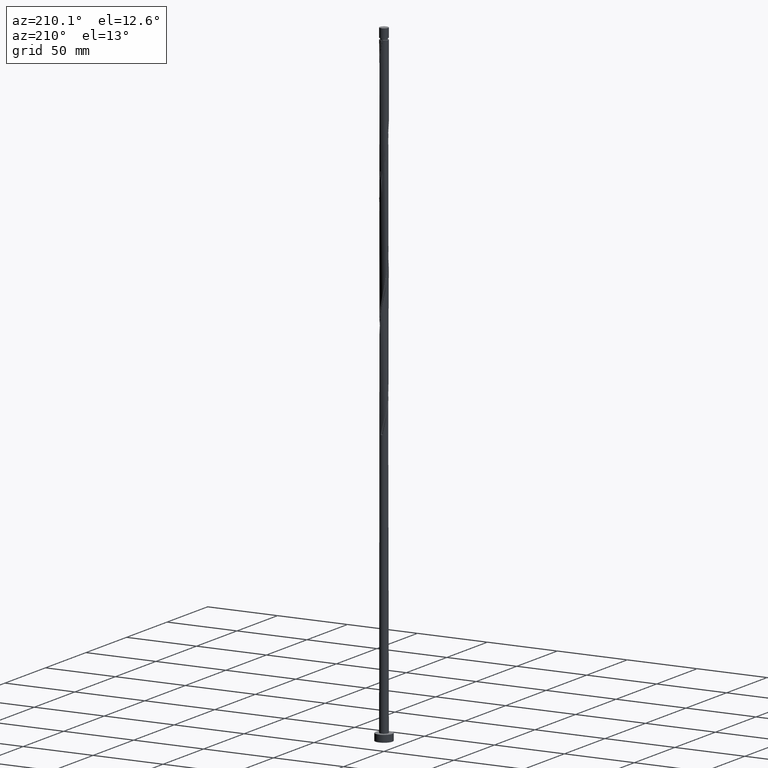
[diagram: clean part render]
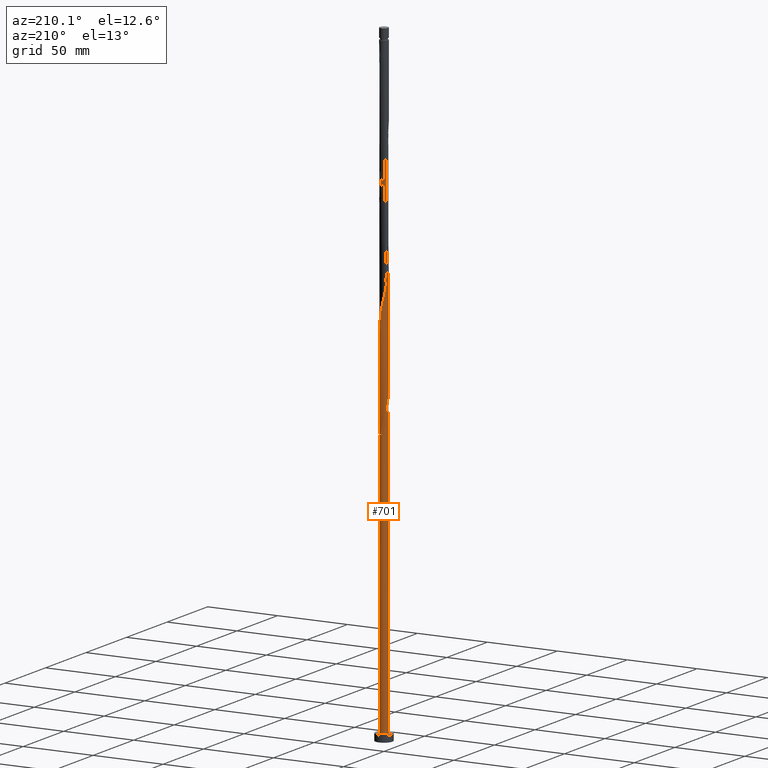
[diagram: same view with one face highlighted and labeled with its STEP entity id]
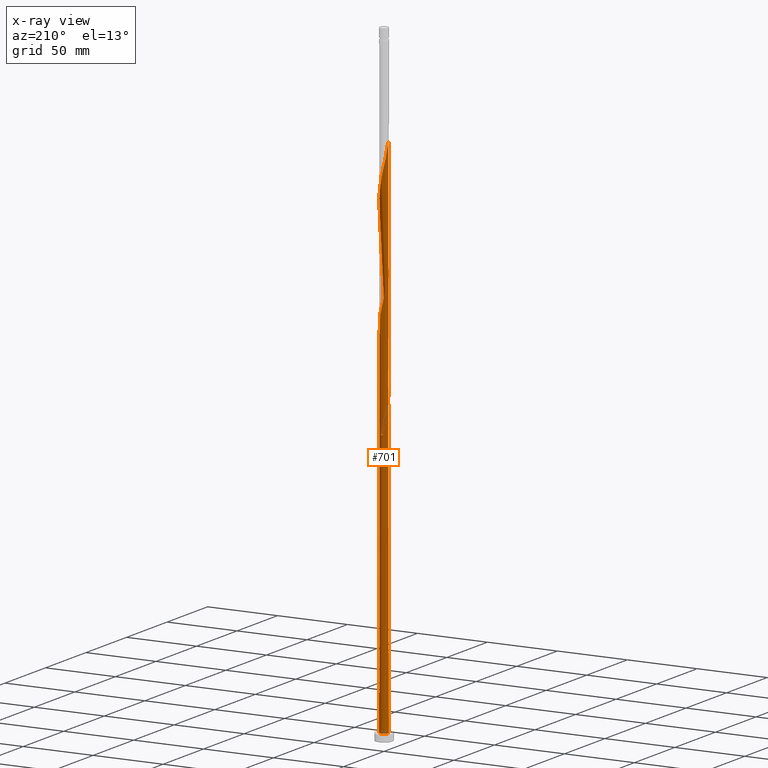
[diagram: x-ray of the same camera — body ghosted, the highlighted face saturated]
A machine part, auxiliary view. The second image highlights one B-rep face of the part: STEP entity #701.
The next image is the same camera in x-ray: the body ghosted, the highlighted face saturated — about 0% of this face is hidden behind the body in this view.
In plain terms, the highlighted cylindrical surface (bore or boss wall) has radius 3 mm, axis along (-0, -0, -1).
Its self-contained STEP definition (entity closure, byte-faithful):
#6 = CARTESIAN_POINT ( 'NONE',  ( 0.01195587277277157696, 2.999976176089777624, 197.0428741216064168 ) ) ;
#19 = CARTESIAN_POINT ( 'NONE',  ( -3.000000000000004885, 1.538591617271993486E-15, 212.6151771436095714 ) ) ;
#28 = CARTESIAN_POINT ( 'NONE',  ( 2.664207629581487602, -1.410426430302975209, 247.8241241216065021 ) ) ;
#37 = CARTESIAN_POINT ( 'NONE',  ( -1.159086966227606874, 2.767041272681220576, 280.3762074549396743 ) ) ;
#38 = VECTOR ( 'NONE', #1929, 1000.000000000000000 ) ;
#45 = CARTESIAN_POINT ( 'NONE',  ( 2.112849418798543599, 2.129757576223802129, 264.7512074549397312 ) ) ;
#53 = CARTESIAN_POINT ( 'NONE',  ( -2.129757576223803017, 2.112849418798543155, 285.5845407882730456 ) ) ;
#63 = CARTESIAN_POINT ( 'NONE',  ( 1.431616744321173362, -2.652881170764467278, 323.3449574549398449 ) ) ;
#76 = CARTESIAN_POINT ( 'NONE',  ( -1.676638408102569811, 2.487746701027921503, 366.3137074549398449 ) ) ;
#85 = CARTESIAN_POINT ( 'NONE',  ( -2.998798625402032236, -0.3074277363939125207, 297.3032907882730456 ) ) ;
#94 = CARTESIAN_POINT ( 'NONE',  ( 2.664207629581487602, -1.410426430302975209, 331.1574574549397312 ) ) ;
#95 = CARTESIAN_POINT ( 'NONE',  ( -1.656756518304338233, 2.501031355072561801, 204.8553741216063599 ) ) ;
#97 = CARTESIAN_POINT ( 'NONE',  ( -0.5969924622639756207, 2.940000000000003944, 194.4387074549397028 ) ) ;
#102 = CARTESIAN_POINT ( 'NONE',  ( -2.129757576223803017, 2.112849418798543155, 368.9178741216065305 ) ) ;
#125 = CARTESIAN_POINT ( 'NONE',  ( -3.000000000000003997, 0.2894394447869549913, 211.3391970381935039 ) ) ;
#133 = CARTESIAN_POINT ( 'NONE',  ( -2.999976176089777624, 0.01195587277277179034, 217.8762074549397312 ) ) ;
#141 = CARTESIAN_POINT ( 'NONE',  ( 0.3074277363939131313, 2.998798625402026907, 195.7407907882730740 ) ) ;
#142 = CARTESIAN_POINT ( 'NONE',  ( -2.888176173499371391, 0.8635643575599516453, 208.7616241216064452 ) ) ;
#149 = EDGE_CURVE ( 'NONE', #1132, #1270, #1295, .T. ) ;
#157 = CARTESIAN_POINT ( 'NONE',  ( -2.652881170764467278, -1.431616744321173362, 219.1782907882730740 ) ) ;
#163 = CARTESIAN_POINT ( 'NONE',  ( -3.000000000000004885, 1.538591617271993289E-15, 379.2818438102762570 ) ) ;
#166 = CARTESIAN_POINT ( 'NONE',  ( 2.337855080563639110, -1.903086606305708361, 245.2199574549397596 ) ) ;
#176 = CARTESIAN_POINT ( 'NONE',  ( 3.001153726777532338, -0.2835159908483710356, 253.0324574549397880 ) ) ;
#178 = VERTEX_POINT ( 'NONE', #751 ) ;
#184 =( BOUNDED_CURVE ( )  B_SPLINE_CURVE ( 2, ( #19, #1268, #1086, #1279, #1573, #493, #1701, #157, #925, #1426, #1875, #1727, #1104, #1112, #1417, #782, #640, #954, #620, #468, #1542, #1399, #935, #1554, #1244, #773, #1582, #166, #1710, #28, #1233, #629, #805, #176, #793, #1862, #659, #343, #313, #1389, #1854, #1883, #45, #649, #334, #1260, #324, #477, #945, #1565, #1407, #186, #1075, #486, #37, #964, #197, #813, #53, #1894, #1691, #1750, #1288, #848, #544, #1297, #365, #85, #1459, #682, #1738, #700, #1319, #692, #384, #1597, #1933, #1436, #972, #242, #357, #854, #864, #1308, #993, #1471, #1163, #63, #1003, #1481, #218, #395, #1448, #94, #1783, #1926, #1590, #207, #1018, #535, #1151, #1121, #1760, #526, #1917, #1609, #671, #1329, #981, #823, #1142, #1909, #232, #516, #1627, #1131, #712, #1619, #251, #836, #76, #375, #102, #505, #1773, #1819, #914, #1796, #1348, #749, #556 ),
 .UNSPECIFIED., .F., .T. ) 
 B_SPLINE_CURVE_WITH_KNOTS ( ( 3, 2, 2, 2, 2, 2, 2, 2, 2, 2, 2, 2, 2, 2, 2, 2, 2, 2, 2, 2, 2, 2, 2, 2, 2, 2, 2, 2, 2, 2, 2, 2, 2, 2, 2, 2, 2, 2, 2, 2, 2, 2, 2, 2, 2, 2, 2, 2, 2, 2, 2, 2, 2, 2, 2, 2, 2, 2, 2, 2, 2, 2, 2, 2, 2, 3 ),
 ( 0.05452869021808688654, 0.05468750000000000000, 0.06250000000000000000, 0.07031250000000000000, 0.07812500000000000000, 0.08593750000000000000, 0.09375000000000000000, 0.1015625000000000000, 0.1093750000000000000, 0.1171875000000000000, 0.1250000000000000000, 0.1328125000000000000, 0.1406250000000000000, 0.1484375000000000000, 0.1562500000000000000, 0.1640625000000000000, 0.1718750000000000000, 0.1796875000000000000, 0.1875000000000000000, 0.1953125000000000000, 0.2031250000000000000, 0.2109375000000000000, 0.2187500000000000000, 0.2265625000000000000, 0.2343750000000000000, 0.2421875000000000000, 0.2500000000000000000, 0.2578125000000000000, 0.2656250000000000000, 0.2734375000000000000, 0.2812500000000000000, 0.2890625000000000000, 0.2968750000000000000, 0.3046875000000000000, 0.3125000000000000000, 0.3203125000000000000, 0.3281250000000000000, 0.3359375000000000000, 0.3437500000000000000, 0.3515625000000000000, 0.3593750000000000000, 0.3671875000000000000, 0.3750000000000000000, 0.3828125000000000000, 0.3906250000000000000, 0.3984375000000000000, 0.4062500000000000000, 0.4140625000000000000, 0.4218750000000000000, 0.4296875000000000000, 0.4375000000000000000, 0.4453125000000000000, 0.4531250000000000000, 0.4609375000000000000, 0.4687500000000000000, 0.4765625000000000000, 0.4843750000000000000, 0.4921875000000000000, 0.5000000000000000000, 0.5078125000000000000, 0.5156250000000000000, 0.5234375000000000000, 0.5312500000000000000, 0.5390625000000000000, 0.5468750000000000000, 0.5545286902180870392 ),
 .UNSPECIFIED. ) 
 CURVE ( )  GEOMETRIC_REPRESENTATION_ITEM ( )  RATIONAL_B_SPLINE_CURVE ( ( 0.9089165573359744288, 0.9090019243628794099, 0.9090909090909713441, 0.9047133878838773402, 0.9090909090909713441, 0.9047133878838773402, 0.9090909090909713441, 0.9047133878838773402, 0.9090909090909713441, 0.9047133878838773402, 0.9090909090909713441, 0.9047133878838773402, 0.9090909090909713441, 0.9047133878838773402, 0.9090909090909713441, 0.9047133878838773402, 0.9090909090909713441, 0.9047133878838773402, 0.9090909090909713441, 0.9047133878838773402, 0.9090909090909713441, 0.9047133878838773402, 0.9090909090909713441, 0.9047133878838773402, 0.9090909090909713441, 0.9047133878838773402, 0.9090909090909713441, 0.9047133878838773402, 0.9090909090909713441, 0.9047133878838773402, 0.9090909090909713441, 0.9047133878838773402, 0.9090909090909713441, 0.9047133878838773402, 0.9090909090909713441, 0.9047133878838773402, 0.9090909090909713441, 0.9047133878838773402, 0.9090909090909713441, 0.9047133878838773402, 0.9090909090909713441, 0.9047133878838773402, 0.9090909090909713441, 0.9047133878838773402, 0.9090909090909713441, 0.9047133878838773402, 0.9090909090909713441, 0.9047133878838773402, 0.9090909090909713441, 0.9047133878838773402, 0.9090909090909713441, 0.9047133878838773402, 0.9090909090909713441, 0.9047133878838773402, 0.9090909090909713441, 0.9047133878838773402, 0.9090909090909713441, 0.9047133878838773402, 0.9090909090909713441, 0.9047133878838773402, 0.9090909090909713441, 0.9047133878838773402, 0.9090909090909713441, 0.9047133878838773402, 0.9090909090909713441, 0.9047133878838773402, 0.9090909090909713441, 0.9047133878838773402, 0.9090909090909713441, 0.9047133878838773402, 0.9090909090909713441, 0.9047133878838773402, 0.9090909090909713441, 0.9047133878838773402, 0.9090909090909713441, 0.9047133878838773402, 0.9090909090909713441, 0.9047133878838773402, 0.9090909090909713441, 0.9047133878838773402, 0.9090909090909713441, 0.9047133878838773402, 0.9090909090909713441, 0.9047133878838773402, 0.9090909090909713441, 0.9047133878838773402, 0.9090909090909713441, 0.9047133878838773402, 0.9090909090909713441, 0.9047133878838773402, 0.9090909090909713441, 0.9047133878838773402, 0.9090909090909713441, 0.9047133878838773402, 0.9090909090909713441, 0.9047133878838773402, 0.9090909090909713441, 0.9047133878838773402, 0.9090909090909713441, 0.9047133878838773402, 0.9090909090909713441, 0.9047133878838773402, 0.9090909090909713441, 0.9047133878838773402, 0.9090909090909713441, 0.9047133878838773402, 0.9090909090909713441, 0.9047133878838773402, 0.9090909090909713441, 0.9047133878838773402, 0.9090909090909713441, 0.9047133878838773402, 0.9090909090909713441, 0.9047133878838773402, 0.9090909090909713441, 0.9047133878838773402, 0.9090909090909713441, 0.9047133878838773402, 0.9090909090909713441, 0.9047133878838773402, 0.9090909090909713441, 0.9047133878838773402, 0.9090909090909713441, 0.9047133878838773402, 0.9090909090909713441, 0.9047133878838773402, 0.9090909090909713441, 0.9047133878838773402, 0.9090909090909713441, 0.9048023726119691634, 0.9089165573359746508 ) ) 
 REPRESENTATION_ITEM ( '' )  );
#186 = CARTESIAN_POINT ( 'NONE',  ( -0.3074277363939134644, 2.998798625402032236, 276.4699574549397312 ) ) ;
#197 = CARTESIAN_POINT ( 'NONE',  ( -1.676638408102569811, 2.487746701027921503, 282.9803741216063599 ) ) ;
#207 = CARTESIAN_POINT ( 'NONE',  ( 3.001153726777532338, -0.2835159908483710356, 336.3657907882731024 ) ) ;
#218 = CARTESIAN_POINT ( 'NONE',  ( 2.129757576223802573, -2.112849418798543599, 327.2512074549397312 ) ) ;
#224 = CARTESIAN_POINT ( 'NONE',  ( -1.159086966227606874, 2.767041272681220576, 197.0428741216063884 ) ) ;
#232 = CARTESIAN_POINT ( 'NONE',  ( 0.5735401742041631445, 2.944664950138451864, 355.8970407882731024 ) ) ;
#238 = CARTESIAN_POINT ( 'NONE',  ( -3.000000000000004885, 1.538591617271993289E-15, 212.6151771436095714 ) ) ;
#242 = CARTESIAN_POINT ( 'NONE',  ( -0.8635643575599516453, -2.888176173499371391, 312.9282907882731593 ) ) ;
#251 = CARTESIAN_POINT ( 'NONE',  ( -1.159086966227606874, 2.767041272681220576, 363.7095407882731593 ) ) ;
#264 = CARTESIAN_POINT ( 'NONE',  ( -2.664207629581488934, 1.410426430302974099, 206.1574574549397312 ) ) ;
#274 = ORIENTED_EDGE ( 'NONE', *, *, #149, .F. ) ;
#290 = CARTESIAN_POINT ( 'NONE',  ( -0.2835159908483699254, 3.001153726777527453, 198.3449574549397028 ) ) ;
#313 = CARTESIAN_POINT ( 'NONE',  ( 2.767041272681220576, 1.159086966227606874, 259.5428741216064168 ) ) ;
#324 = CARTESIAN_POINT ( 'NONE',  ( 1.136995393931462317, 2.776191901540428830, 269.9595407882731024 ) ) ;
#334 = CARTESIAN_POINT ( 'NONE',  ( 1.656756518304341563, 2.501031355072564022, 267.3553741216064168 ) ) ;
#343 = CARTESIAN_POINT ( 'NONE',  ( 2.881201374597976983, 0.8865571881340381655, 258.2407907882731024 ) ) ;
#350 = VERTEX_POINT ( 'NONE', #163 ) ;
#357 = CARTESIAN_POINT ( 'NONE',  ( -0.5735401742041612572, -2.944664950138451864, 314.2303741216064736 ) ) ;
#358 = ORIENTED_EDGE ( 'NONE', *, *, #1273, .F. ) ;
#365 = CARTESIAN_POINT ( 'NONE',  ( -2.999976176089781621, -0.01195587277277101491, 296.0012074549397880 ) ) ;
#375 = CARTESIAN_POINT ( 'NONE',  ( -1.921660071883965815, 2.322612231291378393, 367.6157907882731024 ) ) ;
#380 = EDGE_CURVE ( 'NONE', #999, #178, #1693, .T. ) ;
#384 = CARTESIAN_POINT ( 'NONE',  ( -2.112849418798543599, -2.129757576223802573, 306.4178741216063599 ) ) ;
#385 = CARTESIAN_POINT ( 'NONE',  ( -2.939999999999999947, 0.5969924622639762868, 215.2720407882731024 ) ) ;
#395 = CARTESIAN_POINT ( 'NONE',  ( 2.337855080563639110, -1.903086606305708361, 328.5532907882731024 ) ) ;
#400 = ORIENTED_EDGE ( 'NONE', *, *, #380, .T. ) ;
#402 = CARTESIAN_POINT ( 'NONE',  ( -3.000000000000000444, 0.000000000000000000, 5.000000000000000000 ) ) ;
#410 = CARTESIAN_POINT ( 'NONE',  ( -3.000000000000000444, 0.000000000000000000, 452.1000000000000227 ) ) ;
#446 = CARTESIAN_POINT ( 'NONE',  ( -0.5735401742041599249, 2.944664950138447423, 199.6470407882731024 ) ) ;
#455 = CARTESIAN_POINT ( 'NONE',  ( 0.5969924622639768419, 2.939999999999999947, 194.4387074549397312 ) ) ;
#468 = CARTESIAN_POINT ( 'NONE',  ( 0.3074277363939123542, -2.998798625402032236, 234.8032907882731024 ) ) ;
#477 = CARTESIAN_POINT ( 'NONE',  ( 0.8635643575599520894, 2.888176173499370947, 271.2616241216064736 ) ) ;
#486 = CARTESIAN_POINT ( 'NONE',  ( -0.8865571881340396088, 2.881201374597976539, 279.0741241216065305 ) ) ;
#493 = CARTESIAN_POINT ( 'NONE',  ( -2.881201374597976539, -0.8865571881340398308, 216.5741241216064168 ) ) ;
#500 = CYLINDRICAL_SURFACE ( 'NONE', #1964, 3.000000000000000444 ) ;
#505 = CARTESIAN_POINT ( 'NONE',  ( -2.337855080563639998, 1.903086606305707695, 370.2199574549398449 ) ) ;
#506 = AXIS2_PLACEMENT_3D ( 'NONE', #879, #1779, #859 ) ;
#516 = CARTESIAN_POINT ( 'NONE',  ( 0.2835159908483711466, 3.001153726777532338, 357.1991241216064168 ) ) ;
#526 = CARTESIAN_POINT ( 'NONE',  ( 2.652881170764467278, 1.431616744321173140, 344.1782907882731024 ) ) ;
#531 = ORIENTED_EDGE ( 'NONE', *, *, #1699, .T. ) ;
#535 = CARTESIAN_POINT ( 'NONE',  ( 2.998798625402032236, 0.3074277363939136865, 338.9699574549398449 ) ) ;
#544 = CARTESIAN_POINT ( 'NONE',  ( -2.944664950138451864, 0.5735401742041610351, 293.3970407882731024 ) ) ;
#548 = CARTESIAN_POINT ( 'NONE',  ( -1.676638408102569811, 2.487746701027921503, 199.6470407882730740 ) ) ;
#556 = CARTESIAN_POINT ( 'NONE',  ( -3.000000000000004441, 1.538591617271993289E-15, 379.2818438102762570 ) ) ;
#557 = CARTESIAN_POINT ( 'NONE',  ( -3.000000000000000444, -7.455319768731686067E-16, 217.9289044329365481 ) ) ;
#562 = DIRECTION ( 'NONE',  ( -0.000000000000000000, -0.000000000000000000, -1.000000000000000000 ) ) ;
#571 = CARTESIAN_POINT ( 'NONE',  ( -2.944664950138451864, 0.5735401742041610351, 210.0637074549397028 ) ) ;
#592 = ORIENTED_EDGE ( 'NONE', *, *, #1838, .F. ) ;
#599 = DIRECTION ( 'NONE',  ( 1.000000000000000000, 0.000000000000000000, 0.000000000000000000 ) ) ;
#620 = CARTESIAN_POINT ( 'NONE',  ( 0.01195587277277016316, -2.999976176089781621, 233.5012074549397312 ) ) ;
#629 = CARTESIAN_POINT ( 'NONE',  ( 2.888176173499371391, -0.8635643575599516453, 250.4282907882731024 ) ) ;
#640 = CARTESIAN_POINT ( 'NONE',  ( -0.5735401742041612572, -2.944664950138451864, 230.8970407882730456 ) ) ;
#649 = CARTESIAN_POINT ( 'NONE',  ( 1.903086606305707695, 2.337855080563640442, 266.0532907882731593 ) ) ;
#659 = CARTESIAN_POINT ( 'NONE',  ( 2.940000000000003944, 0.5969924622639757317, 256.9387074549397880 ) ) ;
#671 = CARTESIAN_POINT ( 'NONE',  ( 2.112849418798543599, 2.129757576223802129, 348.0845407882732161 ) ) ;
#682 = CARTESIAN_POINT ( 'NONE',  ( -2.881201374597976539, -0.8865571881340398308, 299.9074574549397312 ) ) ;
#692 = CARTESIAN_POINT ( 'NONE',  ( -2.322612231291378393, -1.921660071883965815, 305.1157907882731593 ) ) ;
#700 = CARTESIAN_POINT ( 'NONE',  ( -2.652881170764467278, -1.431616744321173362, 302.5116241216063599 ) ) ;
#701 = ADVANCED_FACE ( 'NONE', ( #1237 ), #500, .T. ) ;
#712 = CARTESIAN_POINT ( 'NONE',  ( -0.5969924622639755096, 2.940000000000003944, 361.1053741216064736 ) ) ;
#713 = CARTESIAN_POINT ( 'NONE',  ( -2.767041272681216579, 1.159086966227606208, 212.6678741216064168 ) ) ;
#716 = CARTESIAN_POINT ( 'NONE',  ( -2.129757576223803017, 2.112849418798543155, 202.2512074549397596 ) ) ;
#739 = CARTESIAN_POINT ( 'NONE',  ( -2.998798625402026907, 0.3074277363939129648, 216.5741241216063884 ) ) ;
#749 = CARTESIAN_POINT ( 'NONE',  ( -3.000000000000005329, 0.2894394447869493292, 378.0058637048603032 ) ) ;
#751 = CARTESIAN_POINT ( 'NONE',  ( 3.000000000000000444, 0.000000000000000000, 5.000000000000000000 ) ) ;
#773 = CARTESIAN_POINT ( 'NONE',  ( 1.921660071883965815, -2.322612231291378393, 242.6157907882731024 ) ) ;
#782 = CARTESIAN_POINT ( 'NONE',  ( -0.8635643575599516453, -2.888176173499371391, 229.5949574549397596 ) ) ;
#792 = CARTESIAN_POINT ( 'NONE',  ( -0.8635643575599494248, 2.888176173499367394, 200.9491241216063884 ) ) ;
#793 = CARTESIAN_POINT ( 'NONE',  ( 2.999976176089781621, 0.01195587277276994806, 254.3345407882731024 ) ) ;
#805 = CARTESIAN_POINT ( 'NONE',  ( 2.944664950138451864, -0.5735401742041628115, 251.7303741216064168 ) ) ;
#813 = CARTESIAN_POINT ( 'NONE',  ( -1.921660071883965815, 2.322612231291378393, 284.2824574549396743 ) ) ;
#823 = CARTESIAN_POINT ( 'NONE',  ( 1.410426430302975209, 2.664207629581486714, 351.9907907882732161 ) ) ;
#836 = CARTESIAN_POINT ( 'NONE',  ( -1.431616744321174028, 2.652881170764466834, 365.0116241216064736 ) ) ;
#848 = CARTESIAN_POINT ( 'NONE',  ( -2.888176173499371391, 0.8635643575599516453, 292.0949574549397880 ) ) ;
#854 = CARTESIAN_POINT ( 'NONE',  ( -0.2835159908483707025, -3.001153726777531894, 315.5324574549397312 ) ) ;
#858 = AXIS2_PLACEMENT_3D ( 'NONE', #1564, #1388, #599 ) ;
#859 = DIRECTION ( 'NONE',  ( -1.000000000000000000, 0.000000000000000000, 0.000000000000000000 ) ) ;
#864 = CARTESIAN_POINT ( 'NONE',  ( 0.01195587277277016316, -2.999976176089781621, 316.8345407882729887 ) ) ;
#877 = CARTESIAN_POINT ( 'NONE',  ( -3.000000000000004885, 1.538591617271993486E-15, 212.6151771436095714 ) ) ;
#879 = CARTESIAN_POINT ( 'NONE',  ( 0.000000000000000000, 0.000000000000000000, 194.4387074549397880 ) ) ;
#905 = CARTESIAN_POINT ( 'NONE',  ( -1.136995393931460319, 2.776191901540426166, 202.2512074549397312 ) ) ;
#914 = CARTESIAN_POINT ( 'NONE',  ( -2.776191901540428830, 1.136995393931462317, 374.1262074549397312 ) ) ;
#925 = CARTESIAN_POINT ( 'NONE',  ( -2.487746701027921503, -1.676638408102569588, 220.4803741216064168 ) ) ;
#935 = CARTESIAN_POINT ( 'NONE',  ( 1.159086966227607096, -2.767041272681220576, 238.7095407882731024 ) ) ;
#945 = CARTESIAN_POINT ( 'NONE',  ( 0.5735401742041631445, 2.944664950138451864, 272.5637074549397312 ) ) ;
#954 = CARTESIAN_POINT ( 'NONE',  ( -0.2835159908483707025, -3.001153726777531894, 232.1991241216064452 ) ) ;
#964 = CARTESIAN_POINT ( 'NONE',  ( -1.431616744321174028, 2.652881170764466834, 281.6782907882731593 ) ) ;
#972 = CARTESIAN_POINT ( 'NONE',  ( -1.136995393931462317, -2.776191901540429274, 311.6262074549396743 ) ) ;
#974 = VERTEX_POINT ( 'NONE', #238 ) ;
#981 = CARTESIAN_POINT ( 'NONE',  ( 1.656756518304341563, 2.501031355072564022, 350.6887074549398449 ) ) ;
#986 = CARTESIAN_POINT ( 'NONE',  ( -1.431616744321174028, 2.652881170764466834, 198.3449574549397312 ) ) ;
#987 = LINE ( 'NONE', #410, #1863 ) ;
#993 = CARTESIAN_POINT ( 'NONE',  ( 0.5969924622639760647, -2.940000000000003944, 319.4387074549396743 ) ) ;
#999 = VERTEX_POINT ( 'NONE', #402 ) ;
#1000 = DIRECTION ( 'NONE',  ( 1.000000000000000000, 0.000000000000000000, 0.000000000000000000 ) ) ;
#1003 = CARTESIAN_POINT ( 'NONE',  ( 1.676638408102569588, -2.487746701027921947, 324.6470407882731024 ) ) ;
#1004 = CARTESIAN_POINT ( 'NONE',  ( -2.881201374597972098, 0.8865571881340392757, 213.9699574549397028 ) ) ;
#1012 = EDGE_CURVE ( 'NONE', #178, #999, #1092, .T. ) ;
#1018 = CARTESIAN_POINT ( 'NONE',  ( 2.999976176089781621, 0.01195587277276994806, 337.6678741216063599 ) ) ;
#1041 = ORIENTED_EDGE ( 'NONE', *, *, #1983, .F. ) ;
#1053 = ORIENTED_EDGE ( 'NONE', *, *, #1012, .T. ) ;
#1075 = CARTESIAN_POINT ( 'NONE',  ( -0.5969924622639755096, 2.940000000000003944, 277.7720407882731593 ) ) ;
#1086 = CARTESIAN_POINT ( 'NONE',  ( -2.999976176089781621, -0.01195587277277101491, 212.6678741216064452 ) ) ;
#1092 = CIRCLE ( 'NONE', #1898, 3.000000000000000444 ) ;
#1104 = CARTESIAN_POINT ( 'NONE',  ( -1.656756518304341119, -2.501031355072564022, 225.6887074549397028 ) ) ;
#1112 = CARTESIAN_POINT ( 'NONE',  ( -1.410426430302973655, -2.664207629581488934, 226.9907907882731024 ) ) ;
#1121 = CARTESIAN_POINT ( 'NONE',  ( 2.881201374597976983, 0.8865571881340381655, 341.5741241216064168 ) ) ;
#1131 = CARTESIAN_POINT ( 'NONE',  ( -0.3074277363939134644, 2.998798625402032236, 359.8032907882731593 ) ) ;
#1132 = VERTEX_POINT ( 'NONE', #1914 ) ;
#1142 = CARTESIAN_POINT ( 'NONE',  ( 1.136995393931462317, 2.776191901540428830, 353.2928741216063599 ) ) ;
#1146 = ORIENTED_EDGE ( 'NONE', *, *, #1699, .F. ) ;
#1151 = CARTESIAN_POINT ( 'NONE',  ( 2.940000000000003944, 0.5969924622639757317, 340.2720407882731593 ) ) ;
#1157 = EDGE_CURVE ( 'NONE', #1299, #1270, #1931, .T. ) ;
#1163 = CARTESIAN_POINT ( 'NONE',  ( 1.159086966227607096, -2.767041272681220576, 322.0428741216063031 ) ) ;
#1164 = CARTESIAN_POINT ( 'NONE',  ( -1.410426430302971434, 2.664207629581484493, 203.5532907882730456 ) ) ;
#1175 = CARTESIAN_POINT ( 'NONE',  ( -1.903086606305704365, 2.337855080563637777, 206.1574574549397312 ) ) ;
#1180 = CARTESIAN_POINT ( 'NONE',  ( -0.5969924622639756207, 2.940000000000003944, 194.4387074549397312 ) ) ;
#1200 = CARTESIAN_POINT ( 'NONE',  ( 0.000000000000000000, 0.000000000000000000, 452.1000000000000227 ) ) ;
#1233 = CARTESIAN_POINT ( 'NONE',  ( 2.776191901540428830, -1.136995393931462317, 249.1262074549397028 ) ) ;
#1237 = FACE_OUTER_BOUND ( 'NONE', #1341, .T. ) ;
#1244 = CARTESIAN_POINT ( 'NONE',  ( 1.676638408102569588, -2.487746701027921947, 241.3137074549397312 ) ) ;
#1252 = DIRECTION ( 'NONE',  ( -1.000000000000000000, 0.000000000000000000, 0.000000000000000000 ) ) ;
#1260 = CARTESIAN_POINT ( 'NONE',  ( 1.410426430302975209, 2.664207629581486714, 268.6574574549397312 ) ) ;
#1268 = CARTESIAN_POINT ( 'NONE',  ( -3.000000000000004885, -0.005977960122772360031, 212.6415306981268429 ) ) ;
#1270 = VERTEX_POINT ( 'NONE', #1324 ) ;
#1273 = EDGE_CURVE ( 'NONE', #350, #1132, #987, .T. ) ;
#1279 = CARTESIAN_POINT ( 'NONE',  ( -2.998798625402032236, -0.3074277363939125207, 213.9699574549397028 ) ) ;
#1288 = CARTESIAN_POINT ( 'NONE',  ( -2.776191901540428830, 1.136995393931462317, 290.7928741216063599 ) ) ;
#1295 =( BOUNDED_CURVE ( )  B_SPLINE_CURVE ( 2, ( #557, #1510, #133, #739, #385, #1004, #713, #1934, #1330, #1472, #1945, #1175, #95, #1164, #905, #792, #446, #290, #6, #141, #455 ),
 .UNSPECIFIED., .F., .T. ) 
 B_SPLINE_CURVE_WITH_KNOTS ( ( 3, 2, 2, 2, 2, 2, 2, 2, 2, 2, 3 ),
 ( 0.9295286902180873723, 0.9296875000000000000, 0.9375000000000000000, 0.9453125000000000000, 0.9531250000000000000, 0.9609375000000000000, 0.9687500000000000000, 0.9765625000000000000, 0.9843750000000000000, 0.9921875000000000000, 1.000000000000000000 ),
 .UNSPECIFIED. ) 
 CURVE ( )  GEOMETRIC_REPRESENTATION_ITEM ( )  RATIONAL_B_SPLINE_CURVE ( ( 0.9089165573359699879, 0.9090019243628747470, 0.9090909090909664592, 0.9047133878838725662, 0.9090909090909664592, 0.9047133878838725662, 0.9090909090909664592, 0.9047133878838725662, 0.9090909090909664592, 0.9047133878838725662, 0.9090909090909664592, 0.9047133878838725662, 0.9090909090909664592, 0.9047133878838725662, 0.9090909090909664592, 0.9047133878838725662, 0.9090909090909664592, 0.9047133878838725662, 0.9090909090909664592, 0.9047133878838725662, 0.9090909090909664592 ) ) 
 REPRESENTATION_ITEM ( '' )  );
#1297 = CARTESIAN_POINT ( 'NONE',  ( -3.001153726777532782, 0.2835159908483703695, 294.6991241216065305 ) ) ;
#1299 = VERTEX_POINT ( 'NONE', #1180 ) ;
#1308 = CARTESIAN_POINT ( 'NONE',  ( 0.3074277363939123542, -2.998798625402032236, 318.1366241216064168 ) ) ;
#1319 = CARTESIAN_POINT ( 'NONE',  ( -2.487746701027921503, -1.676638408102569588, 303.8137074549396743 ) ) ;
#1324 = CARTESIAN_POINT ( 'NONE',  ( 0.5969924622639767309, 2.939999999999999947, 194.4387074549397312 ) ) ;
#1329 = CARTESIAN_POINT ( 'NONE',  ( 1.903086606305707695, 2.337855080563640442, 349.3866241216064168 ) ) ;
#1330 = CARTESIAN_POINT ( 'NONE',  ( -2.487746701027918395, 1.676638408102568256, 210.0637074549397312 ) ) ;
#1333 = CARTESIAN_POINT ( 'NONE',  ( -2.337855080563639998, 1.903086606305707695, 203.5532907882730740 ) ) ;
#1341 = EDGE_LOOP ( 'NONE', ( #358, #1041, #531, #400, #1053, #1146, #592, #1960, #274 ) ) ;
#1348 = CARTESIAN_POINT ( 'NONE',  ( -2.944664950138451864, 0.5735401742041610351, 376.7303741216064168 ) ) ;
#1350 =( BOUNDED_CURVE ( )  B_SPLINE_CURVE ( 2, ( #97, #1755, #224, #986, #548, #1788, #716, #1333, #1947, #264, #1678, #142, #571, #125, #877 ),
 .UNSPECIFIED., .F., .T. ) 
 B_SPLINE_CURVE_WITH_KNOTS ( ( 3, 2, 2, 2, 2, 2, 2, 3 ),
 ( 0.000000000000000000, 0.007812500000000000000, 0.01562500000000000000, 0.02343750000000000347, 0.03125000000000000000, 0.03906250000000000000, 0.04687500000000000694, 0.05452869021808688654 ),
 .UNSPECIFIED. ) 
 CURVE ( )  GEOMETRIC_REPRESENTATION_ITEM ( )  RATIONAL_B_SPLINE_CURVE ( ( 0.9090909090909713441, 0.9047133878838773402, 0.9090909090909713441, 0.9047133878838773402, 0.9090909090909713441, 0.9047133878838773402, 0.9090909090909713441, 0.9047133878838773402, 0.9090909090909713441, 0.9047133878838773402, 0.9090909090909713441, 0.9047133878838773402, 0.9090909090909713441, 0.9048023726119692745, 0.9089165573359744288 ) ) 
 REPRESENTATION_ITEM ( '' )  );
#1388 = DIRECTION ( 'NONE',  ( 0.000000000000000000, 0.000000000000000000, 1.000000000000000000 ) ) ;
#1389 = CARTESIAN_POINT ( 'NONE',  ( 2.652881170764467278, 1.431616744321173140, 260.8449574549397312 ) ) ;
#1399 = CARTESIAN_POINT ( 'NONE',  ( 0.8865571881340396088, -2.881201374597976539, 237.4074574549398164 ) ) ;
#1407 = CARTESIAN_POINT ( 'NONE',  ( -0.01195587277276973816, 2.999976176089781621, 275.1678741216063599 ) ) ;
#1417 = CARTESIAN_POINT ( 'NONE',  ( -1.136995393931462317, -2.776191901540429274, 228.2928741216063884 ) ) ;
#1426 = CARTESIAN_POINT ( 'NONE',  ( -2.322612231291378393, -1.921660071883965815, 221.7824574549397596 ) ) ;
#1436 = CARTESIAN_POINT ( 'NONE',  ( -1.410426430302973655, -2.664207629581488934, 310.3241241216064168 ) ) ;
#1448 = CARTESIAN_POINT ( 'NONE',  ( 2.501031355072564022, -1.656756518304341563, 329.8553741216064168 ) ) ;
#1452 = LINE ( 'NONE', #1922, #38 ) ;
#1459 = CARTESIAN_POINT ( 'NONE',  ( -2.940000000000003944, -0.5969924622639761758, 298.6053741216063599 ) ) ;
#1471 = CARTESIAN_POINT ( 'NONE',  ( 0.8865571881340396088, -2.881201374597976539, 320.7407907882732161 ) ) ;
#1472 = CARTESIAN_POINT ( 'NONE',  ( -2.322612231291373952, 1.921660071883963816, 208.7616241216063884 ) ) ;
#1481 = CARTESIAN_POINT ( 'NONE',  ( 1.921660071883965815, -2.322612231291378393, 325.9491241216064736 ) ) ;
#1510 = CARTESIAN_POINT ( 'NONE',  ( -3.000000000000000444, 0.005977960122791428979, 217.9025508784192766 ) ) ;
#1542 = CARTESIAN_POINT ( 'NONE',  ( 0.5969924622639760647, -2.940000000000003944, 236.1053741216064452 ) ) ;
#1554 = CARTESIAN_POINT ( 'NONE',  ( 1.431616744321173362, -2.652881170764467278, 240.0116241216064736 ) ) ;
#1564 = CARTESIAN_POINT ( 'NONE',  ( 0.000000000000000000, 0.000000000000000000, 5.000000000000000000 ) ) ;
#1565 = CARTESIAN_POINT ( 'NONE',  ( 0.2835159908483711466, 3.001153726777532338, 273.8657907882731024 ) ) ;
#1573 = CARTESIAN_POINT ( 'NONE',  ( -2.940000000000003944, -0.5969924622639761758, 215.2720407882730456 ) ) ;
#1582 = CARTESIAN_POINT ( 'NONE',  ( 2.129757576223802573, -2.112849418798543599, 243.9178741216063884 ) ) ;
#1590 = CARTESIAN_POINT ( 'NONE',  ( 2.944664950138451864, -0.5735401742041628115, 335.0637074549396175 ) ) ;
#1597 = CARTESIAN_POINT ( 'NONE',  ( -1.903086606305708139, -2.337855080563639998, 307.7199574549397880 ) ) ;
#1609 = CARTESIAN_POINT ( 'NONE',  ( 2.322612231291378393, 1.921660071883965148, 346.7824574549397880 ) ) ;
#1619 = CARTESIAN_POINT ( 'NONE',  ( -0.8865571881340396088, 2.881201374597976539, 362.4074574549396743 ) ) ;
#1627 = CARTESIAN_POINT ( 'NONE',  ( -0.01195587277276973816, 2.999976176089781621, 358.5012074549397880 ) ) ;
#1635 = CARTESIAN_POINT ( 'NONE',  ( 0.000000000000000000, 0.000000000000000000, 5.000000000000000000 ) ) ;
#1678 = CARTESIAN_POINT ( 'NONE',  ( -2.776191901540428830, 1.136995393931462317, 207.4595407882730740 ) ) ;
#1691 = CARTESIAN_POINT ( 'NONE',  ( -2.501031355072564022, 1.656756518304341119, 288.1887074549397312 ) ) ;
#1693 = CIRCLE ( 'NONE', #858, 3.000000000000000444 ) ;
#1699 = EDGE_CURVE ( 'NONE', #974, #999, #1452, .T. ) ;
#1701 = CARTESIAN_POINT ( 'NONE',  ( -2.767041272681221020, -1.159086966227606874, 217.8762074549397312 ) ) ;
#1705 = DIRECTION ( 'NONE',  ( -0.000000000000000000, -0.000000000000000000, -1.000000000000000000 ) ) ;
#1710 = CARTESIAN_POINT ( 'NONE',  ( 2.501031355072564022, -1.656756518304341563, 246.5220407882731024 ) ) ;
#1727 = CARTESIAN_POINT ( 'NONE',  ( -1.903086606305708139, -2.337855080563639998, 224.3866241216065021 ) ) ;
#1738 = CARTESIAN_POINT ( 'NONE',  ( -2.767041272681221020, -1.159086966227606874, 301.2095407882730456 ) ) ;
#1750 = CARTESIAN_POINT ( 'NONE',  ( -2.664207629581488934, 1.410426430302974099, 289.4907907882731024 ) ) ;
#1755 = CARTESIAN_POINT ( 'NONE',  ( -0.8865571881340396088, 2.881201374597976539, 195.7407907882731024 ) ) ;
#1760 = CARTESIAN_POINT ( 'NONE',  ( 2.767041272681220576, 1.159086966227606874, 342.8762074549398449 ) ) ;
#1768 = DIRECTION ( 'NONE',  ( 0.000000000000000000, 0.000000000000000000, 1.000000000000000000 ) ) ;
#1773 = CARTESIAN_POINT ( 'NONE',  ( -2.501031355072564022, 1.656756518304341119, 371.5220407882729887 ) ) ;
#1779 = DIRECTION ( 'NONE',  ( 0.000000000000000000, -0.000000000000000000, -1.000000000000000000 ) ) ;
#1783 = CARTESIAN_POINT ( 'NONE',  ( 2.776191901540428830, -1.136995393931462317, 332.4595407882731024 ) ) ;
#1788 = CARTESIAN_POINT ( 'NONE',  ( -1.921660071883965815, 2.322612231291378393, 200.9491241216064452 ) ) ;
#1796 = CARTESIAN_POINT ( 'NONE',  ( -2.888176173499371391, 0.8635643575599516453, 375.4282907882731024 ) ) ;
#1819 = CARTESIAN_POINT ( 'NONE',  ( -2.664207629581488934, 1.410426430302974099, 372.8241241216065305 ) ) ;
#1838 = EDGE_CURVE ( 'NONE', #1299, #974, #1350, .T. ) ;
#1854 = CARTESIAN_POINT ( 'NONE',  ( 2.487746701027921059, 1.676638408102570255, 262.1470407882731024 ) ) ;
#1862 = CARTESIAN_POINT ( 'NONE',  ( 2.998798625402032236, 0.3074277363939136865, 255.6366241216064736 ) ) ;
#1863 = VECTOR ( 'NONE', #562, 1000.000000000000000 ) ;
#1875 = CARTESIAN_POINT ( 'NONE',  ( -2.112849418798543599, -2.129757576223802573, 223.0845407882730740 ) ) ;
#1883 = CARTESIAN_POINT ( 'NONE',  ( 2.322612231291378393, 1.921660071883965148, 263.4491241216064168 ) ) ;
#1894 = CARTESIAN_POINT ( 'NONE',  ( -2.337855080563639998, 1.903086606305707695, 286.8866241216063599 ) ) ;
#1898 = AXIS2_PLACEMENT_3D ( 'NONE', #1635, #1768, #1000 ) ;
#1909 = CARTESIAN_POINT ( 'NONE',  ( 0.8635643575599520894, 2.888176173499370947, 354.5949574549398449 ) ) ;
#1914 = CARTESIAN_POINT ( 'NONE',  ( -3.000000000000000444, -7.455319768731686067E-16, 217.9289044329365481 ) ) ;
#1917 = CARTESIAN_POINT ( 'NONE',  ( 2.487746701027921059, 1.676638408102570255, 345.4803741216065305 ) ) ;
#1922 = CARTESIAN_POINT ( 'NONE',  ( -3.000000000000000444, 0.000000000000000000, 452.1000000000000227 ) ) ;
#1926 = CARTESIAN_POINT ( 'NONE',  ( 2.888176173499371391, -0.8635643575599516453, 333.7616241216065873 ) ) ;
#1929 = DIRECTION ( 'NONE',  ( -0.000000000000000000, -0.000000000000000000, -1.000000000000000000 ) ) ;
#1931 = CIRCLE ( 'NONE', #506, 3.000000000000000444 ) ;
#1933 = CARTESIAN_POINT ( 'NONE',  ( -1.656756518304341119, -2.501031355072564022, 309.0220407882731593 ) ) ;
#1934 = CARTESIAN_POINT ( 'NONE',  ( -2.652881170764462837, 1.431616744321172474, 211.3657907882730456 ) ) ;
#1945 = CARTESIAN_POINT ( 'NONE',  ( -2.112849418798540047, 2.129757576223800797, 207.4595407882731024 ) ) ;
#1947 = CARTESIAN_POINT ( 'NONE',  ( -2.501031355072564022, 1.656756518304341119, 204.8553741216063884 ) ) ;
#1960 = ORIENTED_EDGE ( 'NONE', *, *, #1157, .T. ) ;
#1964 = AXIS2_PLACEMENT_3D ( 'NONE', #1200, #1705, #1252 ) ;
#1983 = EDGE_CURVE ( 'NONE', #974, #350, #184, .T. ) ;